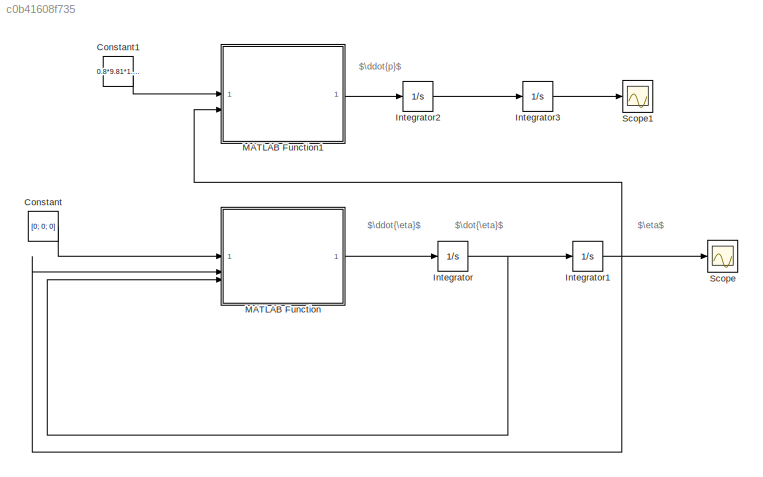
MODEL slx_c0b41608f735
KIND model
CONFIG AbsTol = auto
CONFIG EnableMultiTasking = off
CONFIG FixedStep = 1e-3
CONFIG MaxStep = auto
CONFIG MinStep = auto
CONFIG RelTol = 1e-3
CONFIG SampleTimeConstraint = Unconstrained
CONFIG SolverName = FixedStepAuto
CONFIG StartTime = 0.0
CONFIG StopTime = 10
BLOCK [Constant] Constant
  Value = [0; 0; 0]
BLOCK [Constant] Constant1
  Value = 0.8*9.81*1.0002
BLOCK [Integrator] Integrator
  InitialCondition = [0; 0; 0]
BLOCK [Integrator] Integrator1
  InitialCondition = [0; 0; 0]
BLOCK [Integrator] Integrator2
  InitialCondition = [0; 0; 0]
BLOCK [Integrator] Integrator3
  InitialCondition = [0; 0; 0]
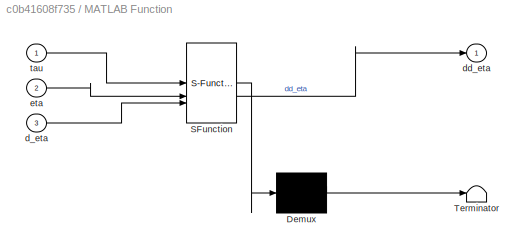
BLOCK [SubSystem] MATLAB Function
  ErrorFcn = Stateflow.Translate.translate
  PermitHierarchicalResolution = ExplicitOnly
  SFBlockType = MATLAB Function
  TreatAsAtomicUnit = on
BLOCK [Demux] MATLAB Function/ Demux 
  Outputs = 1
BLOCK [S-Function] MATLAB Function/ SFunction 
  EnableBusSupport = on
  FunctionName = sf_sfun
  PortCounts = [3 2]
  SFcnIsStateOwnerBlock = off
  SFunctionDeploymentMode = off
  Tag = Stateflow S-Function 2
BLOCK [Terminator] MATLAB Function/ Terminator 
BLOCK [Inport] MATLAB Function/d_eta
  Port = 3
BLOCK [Outport] MATLAB Function/dd_eta
BLOCK [Inport] MATLAB Function/eta
  Port = 2
BLOCK [Inport] MATLAB Function/tau
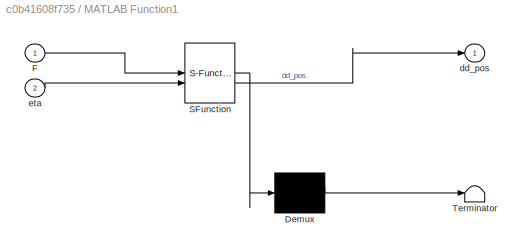
BLOCK [SubSystem] MATLAB Function1
  ErrorFcn = Stateflow.Translate.translate
  PermitHierarchicalResolution = ExplicitOnly
  SFBlockType = MATLAB Function
  TreatAsAtomicUnit = on
BLOCK [Demux] MATLAB Function1/ Demux 
  Outputs = 1
BLOCK [S-Function] MATLAB Function1/ SFunction 
  EnableBusSupport = on
  FunctionName = sf_sfun
  PortCounts = [2 2]
  SFcnIsStateOwnerBlock = off
  SFunctionDeploymentMode = off
  Tag = Stateflow S-Function 1
BLOCK [Terminator] MATLAB Function1/ Terminator 
BLOCK [Inport] MATLAB Function1/F
BLOCK [Outport] MATLAB Function1/dd_pos
BLOCK [Inport] MATLAB Function1/eta
  Port = 2
BLOCK [Scope] Scope
  Floating = off
  NumInputPorts = 1
  ScopeSpecificationString = Simulink.scopes.TimeScopeBlockCfg('CurrentConfiguration', extmgr.ConfigurationSet(extmgr.Configuration('Core','General UI',true),extmgr.Configuration('Core','Source UI',true),extmgr.Configuration('Sources','WiredSimulink',true),extmgr.Configuration('Visuals','Time Domain',true,'SerializedDisplays',{struct('MinYLimReal','-1.00000','MaxYLimReal','1.00000','YLabelReal','','MinYLimMag','0.00000','MaxY...<+1483ch>
BLOCK [Scope] Scope1
  Floating = off
  NumInputPorts = 1
  ScopeSpecificationString = Simulink.scopes.TimeScopeBlockCfg('CurrentConfiguration', extmgr.ConfigurationSet(extmgr.Configuration('Core','General UI',true),extmgr.Configuration('Core','Source UI',true),extmgr.Configuration('Sources','WiredSimulink',true,'DataLoggingVariableName','ScopeData1'),extmgr.Configuration('Visuals','Time Domain',true,'SerializedDisplays',{struct('MinYLimReal','-0.01226','MaxYLimReal','0.11036','YLab...<+1522ch>
ANNOTATION (root): $\ddot{\eta}$
ANNOTATION (root): $\ddot{p}$
ANNOTATION (root): $\dot{\eta}$
ANNOTATION (root): $\eta$
LINE Constant1:1 -> MATLAB Function1:1
LINE Constant:1 -> MATLAB Function:1
NET Integrator1:1 -> MATLAB Function1:2, MATLAB Function:2, Scope:1
LINE Integrator2:1 -> Integrator3:1
LINE Integrator3:1 -> Scope1:1
NET Integrator:1 -> Integrator1:1, MATLAB Function:3
LINE MATLAB Function1:1 -> Integrator2:1
LINE MATLAB Function:1 -> Integrator:1
note: NET lines group one-source signal fan-out (src -> all destinations, sorted); 1:1 wires keep LINE
CHART MATLAB Function states=1 transitions=1
  STATE_LABEL 'eML_blk_kernel()'
  STATE_LABEL 'SCRIPT:\nfunction dd_eta = orientation_dynamics(tau, eta, d_eta)\n    \n    % Matriz de inercia (momento de inercia)\n    Ixx = 0.00273;\n    Iyy = 0.00273;\n    Izz = 0.00541;\n    I = diag([Ixx, Iyy, Izz]);\n\n    % Matriz de transformación PHI\n    PHI_11 = 1;\n    PHI_12 = sin(eta(1))*tan(eta(2));\n    PHI_13 = cos(eta(1))*tan(eta(2));\n    PHI_21 = 0;\n    PHI_22 = cos(eta(1));\n    PHI_23 = -sin(eta(1));\n ...<+1323ch>'
CHART MATLAB Function1 states=1 transitions=1
  STATE_LABEL 'eML_blk_kernel()'
  STATE_LABEL 'SCRIPT:\nfunction dd_pos = position_dynamics(F, eta)\n    \n%%% Masa del quad\nm = 0.8; %%%[kg]\n\n%%% Vector de gravedad\ng = 9.81;\ngz = [0; 0; g];\n\n%%% Matriz de rotacion\n\nR_11 = cos(eta(2))*cos(eta(3));\nR_12 = sin(eta(1))*sin(eta(2))*cos(eta(3)) - cos(eta(1))*sin(eta(3));\nR_13 = cos(eta(1))*sin(eta(2))*cos(eta(3)) + sin(eta(1))*sin(eta(3));\nR_21 = cos(eta(2))*sin(eta(3));\nR_22 = sin(eta(1))*sin(eta(2)...<+415ch>'
CHART  states=0 transitions=0
CHART  states=0 transitions=0
